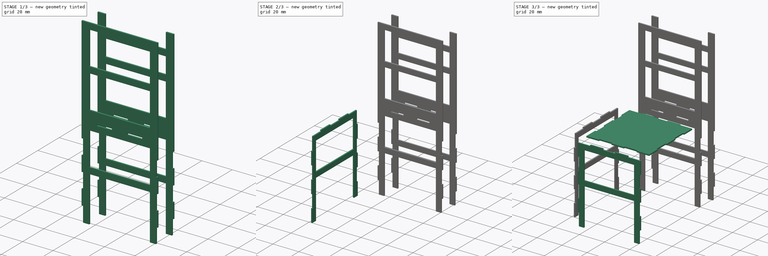
[diagram: build sequence overview — one tinted view per stage of 3, left to right]
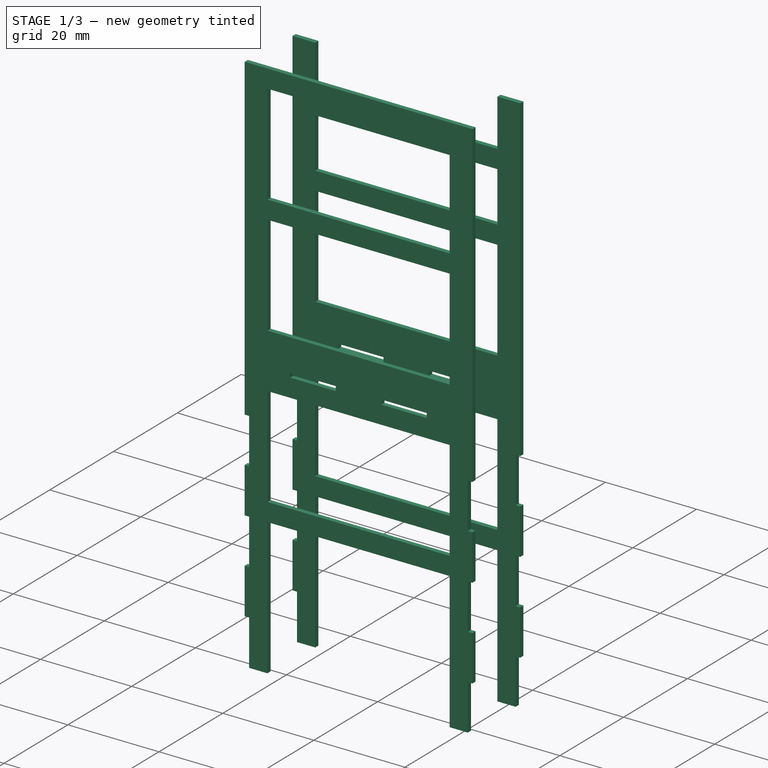
[diagram: stage 1 of 3 — iso view after this stage's code; geometry added in this stage tinted green]
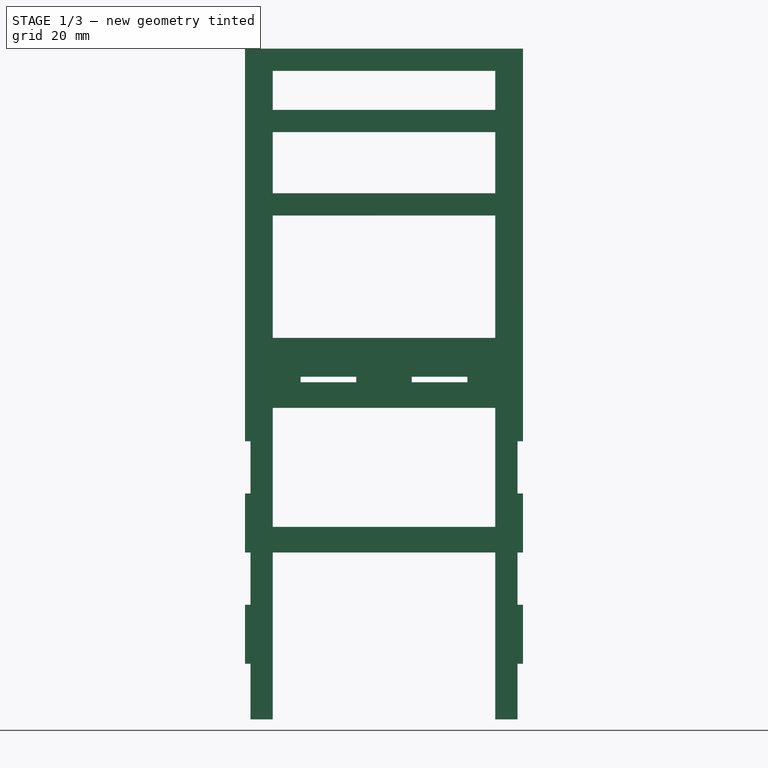
[diagram: stage 1 of 3 — front view after this stage's code; geometry added in this stage tinted green]
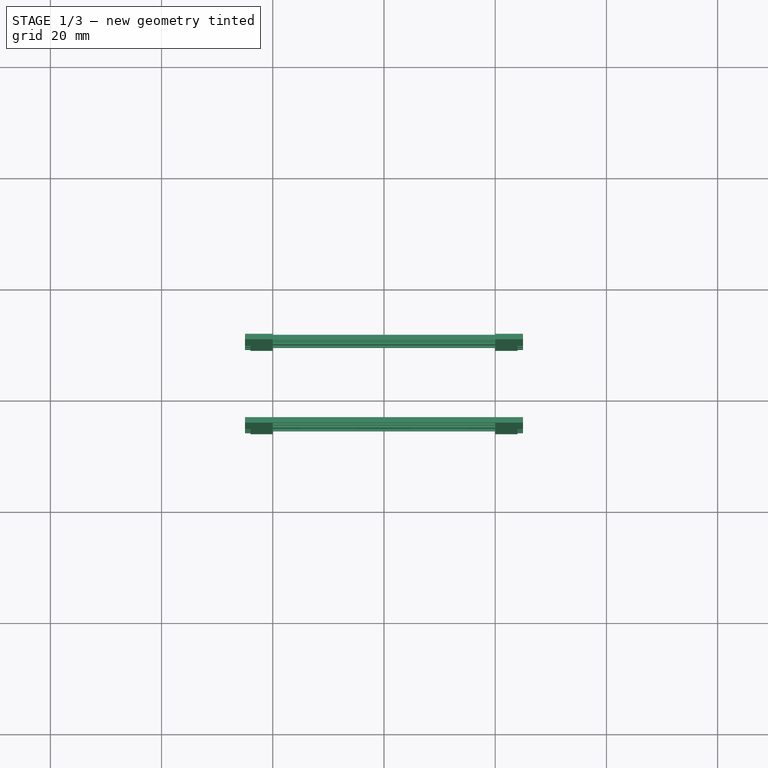
[diagram: stage 1 of 3 — top view after this stage's code; geometry added in this stage tinted green]
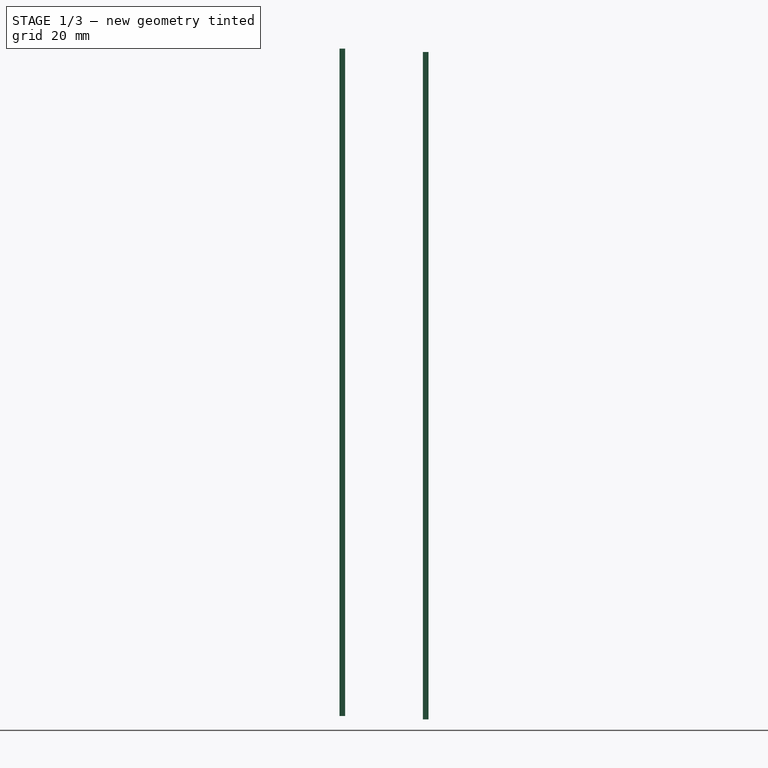
[diagram: stage 1 of 3 — right view after this stage's code; geometry added in this stage tinted green]
FCSTD DOCUMENT  (FreeCAD 0.16R6692 (Git))
Label: chairs_01
License: All rights reserved
LicenseURL: http://en.wikipedia.org/wiki/All_rights_reserved
objects: Sketcher::SketchObject×5, PartDesign::Pad×5, Part::FeaturePython×1
note: 16 computed .brp shape members not serialized (recipe doc carries the construction recipe); baked Part::Feature solids carry a one-line shape summary decoded from their .brp

FEATURE [Sketcher::SketchObject] Sketch003
  Placement = pos=(0,35,0) rot=(1,0,0;1.5708rad)
  sketch-geometry (50):
    g0: LineSegment StartX=-25 StartY=0 StartZ=0 EndX=-25 EndY=60 EndZ=0
    g1: LineSegment StartX=-25 StartY=60 StartZ=0 EndX=25 EndY=60 EndZ=0
    g2: LineSegment StartX=25 StartY=60 StartZ=0 EndX=25 EndY=0 EndZ=0
    g3: LineSegment StartX=25 StartY=0 StartZ=0 EndX=25 EndY=-10 EndZ=0
    g4: LineSegment StartX=25 StartY=-10 StartZ=0 EndX=24 EndY=-10 EndZ=0
    g5: LineSegment StartX=24 StartY=-10 StartZ=0 EndX=24 EndY=-20 EndZ=0
    g6: LineSegment StartX=24 StartY=-20 StartZ=0 EndX=25 EndY=-20 EndZ=0
    g7: LineSegment StartX=25 StartY=-20 StartZ=0 EndX=25 EndY=-30 EndZ=0
    g8: LineSegment StartX=25 StartY=-30 StartZ=0 EndX=24 EndY=-30 EndZ=0
    g9: LineSegment StartX=24 StartY=-30 StartZ=0 EndX=24 EndY=-40 EndZ=0
    g10: LineSegment StartX=24 StartY=-40 StartZ=0 EndX=25 EndY=-40 EndZ=0
    g11: LineSegment StartX=25 StartY=-40 StartZ=0 EndX=25 EndY=-50 EndZ=0
    g12: LineSegment StartX=25 StartY=-50 StartZ=0 EndX=24 EndY=-50 EndZ=0
    g13: LineSegment StartX=24 StartY=-50 StartZ=0 EndX=24 EndY=-60 EndZ=0
    g14: LineSegment StartX=24 StartY=-60 StartZ=0 EndX=20 EndY=-60 EndZ=0
    g15: LineSegment StartX=20 StartY=-60 StartZ=0 EndX=20 EndY=-30 EndZ=0
    g16: LineSegment StartX=20 StartY=-30 StartZ=0 EndX=-20 EndY=-30 EndZ=0
    g17: LineSegment StartX=-20 StartY=-30 StartZ=0 EndX=-20 EndY=-60 EndZ=0
    g18: LineSegment StartX=-20 StartY=-60 StartZ=0 EndX=-24 EndY=-60 EndZ=0
    g19: LineSegment StartX=-24 StartY=-60 StartZ=0 EndX=-24 EndY=-50 EndZ=0
    g20: LineSegment StartX=-24 StartY=-50 StartZ=0 EndX=-25 EndY=-50 EndZ=0
    g21: LineSegment StartX=-25 StartY=-50 StartZ=0 EndX=-25 EndY=-40 EndZ=0
    g22: LineSegment StartX=-25 StartY=-40 StartZ=0 EndX=-24 EndY=-40 EndZ=0
    g23: LineSegment StartX=-24 StartY=-40 StartZ=0 EndX=-24 EndY=-30 EndZ=0
    g24: LineSegment StartX=-24 StartY=-30 StartZ=0 EndX=-25 EndY=-30 EndZ=0
    g25: LineSegment StartX=-25 StartY=-30 StartZ=0 EndX=-25 EndY=-20 EndZ=0
    g26: LineSegment StartX=-25 StartY=-20 StartZ=0 EndX=-24 EndY=-20 EndZ=0
    g27: LineSegment StartX=-24 StartY=-20 StartZ=0 EndX=-24 EndY=-10 EndZ=0
    g28: LineSegment StartX=-24 StartY=-10 StartZ=0 EndX=-25 EndY=-10 EndZ=0
    g29: LineSegment StartX=-25 StartY=-10 StartZ=0 EndX=-25 EndY=0 EndZ=0
    g30: LineSegment StartX=-20 StartY=-4 StartZ=0 EndX=20 EndY=-4 EndZ=0
    g31: LineSegment StartX=20 StartY=-4 StartZ=0 EndX=20 EndY=-26 EndZ=0
    g32: LineSegment StartX=20 StartY=-26 StartZ=0 EndX=-20 EndY=-26 EndZ=0
    g33: LineSegment StartX=-20 StartY=-26 StartZ=0 EndX=-20 EndY=-4 EndZ=0
    g34: LineSegment StartX=-20 StartY=8 StartZ=0 EndX=20 EndY=8 EndZ=0
    g35: LineSegment StartX=20 StartY=8 StartZ=0 EndX=20 EndY=30 EndZ=0
    g36: LineSegment StartX=20 StartY=30 StartZ=0 EndX=-20 EndY=30 EndZ=0
    g37: LineSegment StartX=-20 StartY=30 StartZ=0 EndX=-20 EndY=8 EndZ=0
    g38: LineSegment StartX=-20 StartY=56 StartZ=0 EndX=20 EndY=56 EndZ=0
    g39: LineSegment StartX=20 StartY=56 StartZ=0 EndX=20 EndY=34 EndZ=0
    g40: LineSegment StartX=20 StartY=34 StartZ=0 EndX=-20 EndY=34 EndZ=0
    g41: LineSegment StartX=-20 StartY=34 StartZ=0 EndX=-20 EndY=56 EndZ=0
    g42: LineSegment StartX=-15 StartY=1 StartZ=0 EndX=-5 EndY=1 EndZ=0
    g43: LineSegment StartX=-5 StartY=1 StartZ=0 EndX=-5 EndY=0 EndZ=0
    g44: LineSegment StartX=-5 StartY=0 StartZ=0 EndX=-15 EndY=0 EndZ=0
    g45: LineSegment StartX=-15 StartY=0 StartZ=0 EndX=-15 EndY=1 EndZ=0
    g46: LineSegment StartX=5 StartY=1 StartZ=0 EndX=15 EndY=1 EndZ=0
    g47: LineSegment StartX=15 StartY=1 StartZ=0 EndX=15 EndY=0 EndZ=0
    g48: LineSegment StartX=15 StartY=0 StartZ=0 EndX=5 EndY=0 EndZ=0
    g49: LineSegment StartX=5 StartY=0 StartZ=0 EndX=5 EndY=1 EndZ=0
  constraints (154):
    c: Coincident(g0,g1)
    c: Horizontal(g1)
    c: Coincident(g1,g2)
    c: Vertical(g2)
    c: Coincident(g3,g4)
    c: Coincident(g4,g5)
    c: Vertical(g5)
    c: Coincident(g5,g6)
    c: Coincident(g6,g7)
    c: Vertical(g7)
    c: Coincident(g7,g8)
    c: Coincident(g8,g9)
    c: Coincident(g9,g10)
    c: Coincident(g10,g11)
    c: Vertical(g11)
    c: Coincident(g11,g12)
    c: Coincident(g12,g13)
    c: Vertical(g13)
    c: Coincident(g13,g14)
    c: Coincident(g14,g15)
    c: Vertical(g15)
    c: Coincident(g15,g16)
    c: Horizontal(g16)
    c: Coincident(g16,g17)
    c: Coincident(g17,g18)
    c: Coincident(g18,g19)
    c: Vertical(g19)
    c: Coincident(g19,g20)
    c: Coincident(g20,g21)
    c: Vertical(g21)
    c: Coincident(g21,g22)
    c: Coincident(g22,g23)
    c: Coincident(g23,g24)
    c: Horizontal(g24)
    c: Coincident(g24,g25)
    c: Vertical(g25)
    c: Coincident(g25,g26)
    c: Coincident(g26,g27)
    c: Coincident(g27,g28)
    c: Coincident(g28,g29)
    c: Vertical(g29)
    c: Vertical(g27)
    c: Vertical(g23)
    c: Vertical(g17)
    c: Vertical(g9)
    c: Vertical(g3)
    c: Horizontal(g28)
    c: Horizontal(g26)
    c: Horizontal(g22)
    c: Horizontal(g20)
    c: Horizontal(g18)
    c: Horizontal(g14)
    c: Horizontal(g12)
    c: Horizontal(g10)
    c: Horizontal(g8)
    c: Horizontal(g6)
    c: Horizontal(g4)
    c: Vertical(g0)
    c: Equal(g29,g27)
    c: Equal(g27,g25)
    c: Equal(g25,g23)
    c: Equal(g23,g21)
    c: Equal(g21,g19)
    c: Equal(g19,g13)
    c: Equal(g13,g11)
    c: Equal(g11,g9)
    c: Equal(g9,g7)
    c: Equal(g7,g5)
    c: Equal(g5,g3)
    c: Equal(g28,g26)
    c: Equal(g26,g24)
    c: Equal(g24,g22)
    c: Equal(g22,g20)
    c: Equal(g20,g12)
    c: Equal(g12,g10)
    c: Equal(g10,g8)
    c: Equal(g8,g6)
    c: Equal(g6,g4)
    c: DistanceY(g29) = 10
    c: DistanceX(g28) = -1
    c: Equal(g18,g14)
    c: DistanceX(g18) = -4
    c: Equal(g17,g15)
    c: DistanceY(g17) = -30
    c: Symmetric(g29,g3,g-2)
    c: Coincident(g30,g31)
    c: Coincident(g31,g32)
    c: Coincident(g32,g33)
    c: Coincident(g33,g30)
    c: Horizontal(g30)
    c: Horizontal(g32)
    c: Vertical(g31)
    c: Vertical(g33)
    c: Equal(g32,g30)
    c: Equal(g30,g16)
    c: Symmetric(g30,g30,g-2)
    c: DistanceY(g32,g16) = -4
    c: DistanceY(g30,g0) = 4
    c: Coincident(g0,g29)
    c: Coincident(g2,g3)
    c: Equal(g0,g2)
    c: DistanceY(g0) = 60
    c: Coincident(g34,g35)
    c: Coincident(g35,g36)
    c: Coincident(g36,g37)
    c: Coincident(g37,g34)
    c: Horizontal(g34)
    c: Vertical(g35)
    c: Vertical(g37)
    c: Coincident(g38,g39)
    c: Coincident(g39,g40)
    c: Coincident(g40,g41)
    c: Coincident(g41,g38)
    c: Horizontal(g38)
    c: Horizontal(g40)
    c: Vertical(g39)
    c: Vertical(g41)
    c: Equal(g38,g40)
    c: Equal(g40,g36)
    c: Equal(g36,g34)
    c: Equal(g34,g30)
    c: Equal(g41,g37)
    c: Equal(g37,g39)
    c: Equal(g39,g35)
    c: Symmetric(g40,g39,g-2)
    c: Symmetric(g36,g35,g-2)
    c: DistanceY(g40,g36) = -4
    c: DistanceY(g38,g0) = 4
    c: DistanceY(g37) = -22
    c: DistanceX(g1) = 50
    c: Coincident(g42,g43)
    c: Coincident(g43,g44)
    c: Coincident(g44,g45)
    c: Coincident(g45,g42)
    c: Horizontal(g42)
    c: Horizontal(g44)
    c: Vertical(g43)
    c: Vertical(g45)
    c: Coincident(g46,g47)
    c: Coincident(g47,g48)
    c: Coincident(g48,g49)
    c: Coincident(g49,g46)
    c: Horizontal(g46)
    c: Horizontal(g48)
    c: Vertical(g47)
    c: Vertical(g49)
    c: Equal(g42,g46)
    c: Equal(g45,g49)
    c: Symmetric(g42,g46,g-2)
    c: DistanceX(g42) = 10
    c: DistanceY(g45) = 1
    c: DistanceX(g-1,g42) = -5
    c: DistanceY(g-1,g43) = 0
    c: DistanceY(g-1,g34) = 8
FEATURE [PartDesign::Pad] Pad003  label="back1"
  Length = 1
  Length2 = 100
  Placement = pos=(0,35,0) rot=(1,0,0;1.5708rad)
  Sketch = -> Sketch003
  Type = 0
FEATURE [Sketcher::SketchObject] Sketch004
  Placement = pos=(0,50,0) rot=(1,0,0;1.5708rad)
  sketch-geometry (54):
    g0: LineSegment StartX=-25 StartY=-0.607968 StartZ=0 EndX=-25 EndY=59.392 EndZ=0
    g1: LineSegment StartX=25 StartY=59.392 StartZ=0 EndX=25 EndY=-0.607968 EndZ=0
    g2: LineSegment StartX=25 StartY=-0.607968 StartZ=0 EndX=25 EndY=-10.608 EndZ=0
    g3: LineSegment StartX=25 StartY=-10.608 StartZ=0 EndX=24 EndY=-10.608 EndZ=0
    g4: LineSegment StartX=24 StartY=-10.608 StartZ=0 EndX=24 EndY=-20.608 EndZ=0
    g5: LineSegment StartX=24 StartY=-20.608 StartZ=0 EndX=25 EndY=-20.608 EndZ=0
    g6: LineSegment StartX=25 StartY=-20.608 StartZ=0 EndX=25 EndY=-30.608 EndZ=0
    g7: LineSegment StartX=25 StartY=-30.608 StartZ=0 EndX=24 EndY=-30.608 EndZ=0
    g8: LineSegment StartX=24 StartY=-30.608 StartZ=0 EndX=24 EndY=-40.608 EndZ=0
    g9: LineSegment StartX=24 StartY=-40.608 StartZ=0 EndX=25 EndY=-40.608 EndZ=0
    g10: LineSegment StartX=25 StartY=-40.608 StartZ=0 EndX=25 EndY=-50.608 EndZ=0
    g11: LineSegment StartX=25 StartY=-50.608 StartZ=0 EndX=24 EndY=-50.608 EndZ=0
    g12: LineSegment StartX=24 StartY=-50.608 StartZ=0 EndX=24 EndY=-60.608 EndZ=0
    g13: LineSegment StartX=24 StartY=-60.608 StartZ=0 EndX=20 EndY=-60.608 EndZ=0
    g14: LineSegment StartX=20 StartY=-60.608 StartZ=0 EndX=20 EndY=-30.608 EndZ=0
    g15: LineSegment StartX=20 StartY=-30.608 StartZ=0 EndX=-20 EndY=-30.608 EndZ=0
    g16: LineSegment StartX=-20 StartY=-30.608 StartZ=0 EndX=-20 EndY=-60.608 EndZ=0
    g17: LineSegment StartX=-20 StartY=-60.608 StartZ=0 EndX=-24 EndY=-60.608 EndZ=0
    g18: LineSegment StartX=-24 StartY=-60.608 StartZ=0 EndX=-24 EndY=-50.608 EndZ=0
    g19: LineSegment StartX=-24 StartY=-50.608 StartZ=0 EndX=-25 EndY=-50.608 EndZ=0
    g20: LineSegment StartX=-25 StartY=-50.608 StartZ=0 EndX=-25 EndY=-40.608 EndZ=0
    g21: LineSegment StartX=-25 StartY=-40.608 StartZ=0 EndX=-24 EndY=-40.608 EndZ=0
    g22: LineSegment StartX=-24 StartY=-40.608 StartZ=0 EndX=-24 EndY=-30.608 EndZ=0
    g23: LineSegment StartX=-24 StartY=-30.608 StartZ=0 EndX=-25 EndY=-30.608 EndZ=0
    g24: LineSegment StartX=-25 StartY=-30.608 StartZ=0 EndX=-25 EndY=-20.608 EndZ=0
    g25: LineSegment StartX=-25 StartY=-20.608 StartZ=0 EndX=-24 EndY=-20.608 EndZ=0
    g26: LineSegment StartX=-24 StartY=-20.608 StartZ=0 EndX=-24 EndY=-10.608 EndZ=0
    g27: LineSegment StartX=-24 StartY=-10.608 StartZ=0 EndX=-25 EndY=-10.608 EndZ=0
    g28: LineSegment StartX=-25 StartY=-10.608 StartZ=0 EndX=-25 EndY=-0.607968 EndZ=0
    g29: LineSegment StartX=-20 StartY=-4.60797 StartZ=0 EndX=20 EndY=-4.60797 EndZ=0
    g30: LineSegment StartX=20 StartY=-4.60797 StartZ=0 EndX=20 EndY=-26.608 EndZ=0
    g31: LineSegment StartX=20 StartY=-26.608 StartZ=0 EndX=-20 EndY=-26.608 EndZ=0
    g32: LineSegment StartX=-20 StartY=-26.608 StartZ=0 EndX=-20 EndY=-4.60797 EndZ=0
    g33: LineSegment StartX=-20 StartY=8 StartZ=0 EndX=20 EndY=8 EndZ=0
    g34: LineSegment StartX=20 StartY=8 StartZ=0 EndX=20 EndY=30 EndZ=0
    g35: LineSegment StartX=20 StartY=30 StartZ=0 EndX=-20 EndY=30 EndZ=0
    g36: LineSegment StartX=-20 StartY=30 StartZ=0 EndX=-20 EndY=8 EndZ=0
    g37: LineSegment StartX=-20 StartY=45 StartZ=0 EndX=20 EndY=45 EndZ=0
    g38: LineSegment StartX=20 StartY=45 StartZ=0 EndX=20 EndY=34 EndZ=0
    g39: LineSegment StartX=20 StartY=34 StartZ=0 EndX=-20 EndY=34 EndZ=0
    g40: LineSegment StartX=-20 StartY=34 StartZ=0 EndX=-20 EndY=45 EndZ=0
    g41: LineSegment StartX=-15 StartY=1 StartZ=0 EndX=-5 EndY=1 EndZ=0
    g42: LineSegment StartX=-5 StartY=1 StartZ=0 EndX=-5 EndY=0 EndZ=0
    g43: LineSegment StartX=-5 StartY=0 StartZ=0 EndX=-15 EndY=0 EndZ=0
    g44: LineSegment StartX=-15 StartY=0 StartZ=0 EndX=-15 EndY=1 EndZ=0
    g45: LineSegment StartX=5 StartY=1 StartZ=0 EndX=15 EndY=1 EndZ=0
    g46: LineSegment StartX=15 StartY=1 StartZ=0 EndX=15 EndY=0 EndZ=0
    g47: LineSegment StartX=15 StartY=0 StartZ=0 EndX=5 EndY=0 EndZ=0
    g48: LineSegment StartX=5 StartY=0 StartZ=0 EndX=5 EndY=1 EndZ=0
    g49: LineSegment StartX=-25 StartY=59.392 StartZ=0 EndX=-20 EndY=59.392 EndZ=0
    g50: LineSegment StartX=-20 StartY=59.392 StartZ=0 EndX=-20 EndY=49 EndZ=0
    g51: LineSegment StartX=-20 StartY=49 StartZ=0 EndX=20 EndY=49 EndZ=0
    g52: LineSegment StartX=20 StartY=49 StartZ=0 EndX=20 EndY=59.392 EndZ=0
    g53: LineSegment StartX=20 StartY=59.392 StartZ=0 EndX=25 EndY=59.392 EndZ=0
  constraints (165):
    c: Vertical(g1)
    c: Coincident(g2,g3)
    c: Coincident(g3,g4)
    c: Vertical(g4)
    c: Coincident(g4,g5)
    c: Coincident(g5,g6)
    c: Vertical(g6)
    c: Coincident(g6,g7)
    c: Coincident(g7,g8)
    c: Coincident(g8,g9)
    c: Coincident(g9,g10)
    c: Vertical(g10)
    c: Coincident(g10,g11)
    c: Coincident(g11,g12)
    c: Vertical(g12)
    c: Coincident(g12,g13)
    c: Coincident(g13,g14)
    c: Vertical(g14)
    c: Coincident(g14,g15)
    c: Horizontal(g15)
    c: Coincident(g15,g16)
    c: Coincident(g16,g17)
    c: Coincident(g17,g18)
    c: Vertical(g18)
    c: Coincident(g18,g19)
    c: Coincident(g19,g20)
    c: Vertical(g20)
    c: Coincident(g20,g21)
    c: Coincident(g21,g22)
    c: Coincident(g22,g23)
    c: Horizontal(g23)
    c: Coincident(g23,g24)
    c: Vertical(g24)
    c: Coincident(g24,g25)
    c: Coincident(g25,g26)
    c: Coincident(g26,g27)
    c: Coincident(g27,g28)
    c: Vertical(g28)
    c: Vertical(g26)
    c: Vertical(g22)
    c: Vertical(g16)
    c: Vertical(g8)
    c: Vertical(g2)
    c: Horizontal(g27)
    c: Horizontal(g25)
    c: Horizontal(g21)
    c: Horizontal(g19)
    c: Horizontal(g17)
    c: Horizontal(g13)
    c: Horizontal(g11)
    c: Horizontal(g9)
    c: Horizontal(g7)
    c: Horizontal(g5)
    c: Horizontal(g3)
    c: Vertical(g0)
    c: Equal(g28,g26)
    c: Equal(g26,g24)
    c: Equal(g24,g22)
    c: Equal(g22,g20)
    c: Equal(g20,g18)
    c: Equal(g18,g12)
    c: Equal(g12,g10)
    c: Equal(g10,g8)
    c: Equal(g8,g6)
    c: Equal(g6,g4)
    c: Equal(g4,g2)
    c: Equal(g27,g25)
    c: Equal(g25,g23)
    c: Equal(g23,g21)
    c: Equal(g21,g19)
    c: Equal(g19,g11)
    c: Equal(g11,g9)
    c: Equal(g9,g7)
    c: Equal(g7,g5)
    c: Equal(g5,g3)
    c: DistanceY(g28) = 10
    c: DistanceX(g27) = -1
    c: Equal(g17,g13)
    c: DistanceX(g17) = -4
    c: Equal(g16,g14)
    c: DistanceY(g16) = -30
    c: Symmetric(g28,g2,g-2)
    c: Coincident(g29,g30)
    c: Coincident(g30,g31)
    c: Coincident(g31,g32)
    c: Coincident(g32,g29)
    c: Horizontal(g29)
    c: Horizontal(g31)
    c: Vertical(g30)
    c: Vertical(g32)
    c: Equal(g31,g29)
    c: Equal(g29,g15)
    c: Symmetric(g29,g29,g-2)
    c: DistanceY(g31,g15) = -4
    c: DistanceY(g29,g0) = 4
    c: Coincident(g0,g28)
    c: Coincident(g1,g2)
    c: Equal(g0,g1)
    c: DistanceY(g0) = 60
    c: Coincident(g33,g34)
    c: Coincident(g34,g35)
    c: Coincident(g35,g36)
    c: Coincident(g36,g33)
    c: Horizontal(g33)
    c: Vertical(g34)
    c: Vertical(g36)
    c: Coincident(g37,g38)
    c: Coincident(g38,g39)
    c: Coincident(g39,g40)
    c: Coincident(g40,g37)
    c: Horizontal(g37)
    c: Horizontal(g39)
    c: Vertical(g38)
    c: Equal(g37,g39)
    c: Equal(g39,g35)
    c: Equal(g35,g33)
    c: Equal(g33,g29)
    c: Symmetric(g39,g38,g-2)
    c: Symmetric(g35,g34,g-2)
    c: DistanceY(g39,g35) = -4
    c: DistanceY(g36) = -22
    c: Coincident(g41,g42)
    c: Coincident(g42,g43)
    c: Coincident(g43,g44)
    c: Coincident(g44,g41)
    c: Horizontal(g41)
    c: Horizontal(g43)
    c: Vertical(g42)
    c: Vertical(g44)
    c: Coincident(g45,g46)
    c: Coincident(g46,g47)
    c: Coincident(g47,g48)
    c: Coincident(g48,g45)
    c: Horizontal(g45)
    c: Horizontal(g47)
    c: Vertical(g46)
    c: Vertical(g48)
    c: Equal(g41,g45)
    c: Equal(g44,g48)
    c: Symmetric(g41,g45,g-2)
    c: DistanceX(g41) = 10
    c: DistanceY(g44) = 1
    c: DistanceX(g-1,g41) = -5
    c: DistanceY(g-1,g42) = 0
    c: DistanceY(g-1,g33) = 8
    c: DistanceY(g40,g40) = 11
    c: Coincident(g49,g50)
    c: Vertical(g50)
    c: Coincident(g50,g51)
    c: Horizontal(g51)
    c: Coincident(g51,g52)
    c: Vertical(g52)
    c: Coincident(g52,g53)
    c: Coincident(g53,g1)
    c: Horizontal(g53)
    c: Coincident(g0,g49)
    c: Horizontal(g49)
    c: DistanceY(g32,g32) = 22
    c: DistanceX(g51,g51) = 40
    c: Equal(g49,g53)
    c: Equal(g50,g52)
    c: DistanceY(g37,g50) = 4
    c: DistanceX(g35,g35) = 40
    c: DistanceX(g35,g35) = 40
    c: DistanceX(g49,g49) = 5
FEATURE [PartDesign::Pad] Pad004  label="back2"
  Length = 1
  Length2 = 100
  Placement = pos=(0,50,0) rot=(1,0,0;1.5708rad)
  Sketch = -> Sketch004
  Type = 0
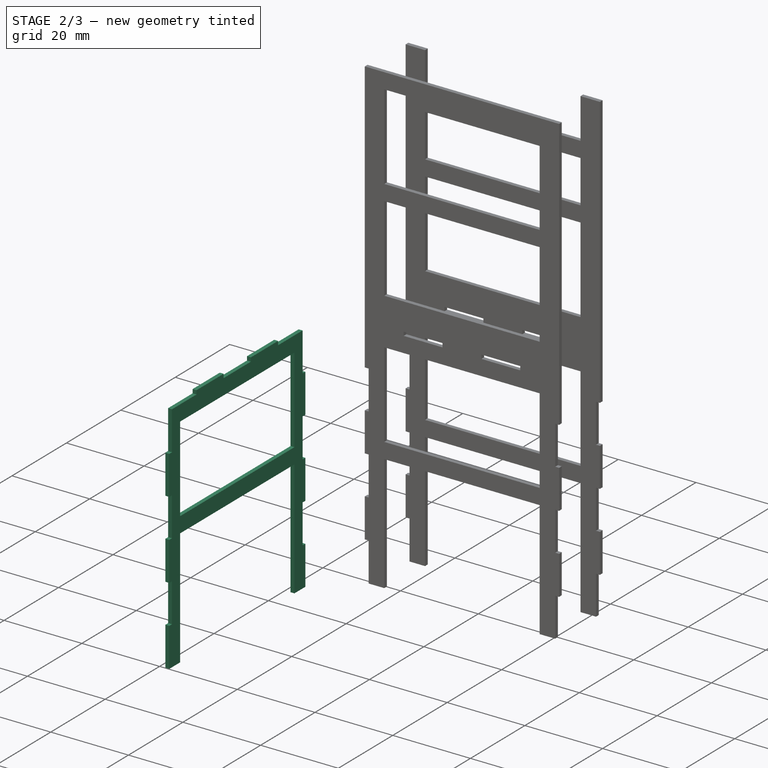
[diagram: stage 2 of 3 — iso view after this stage's code; geometry added in this stage tinted green]
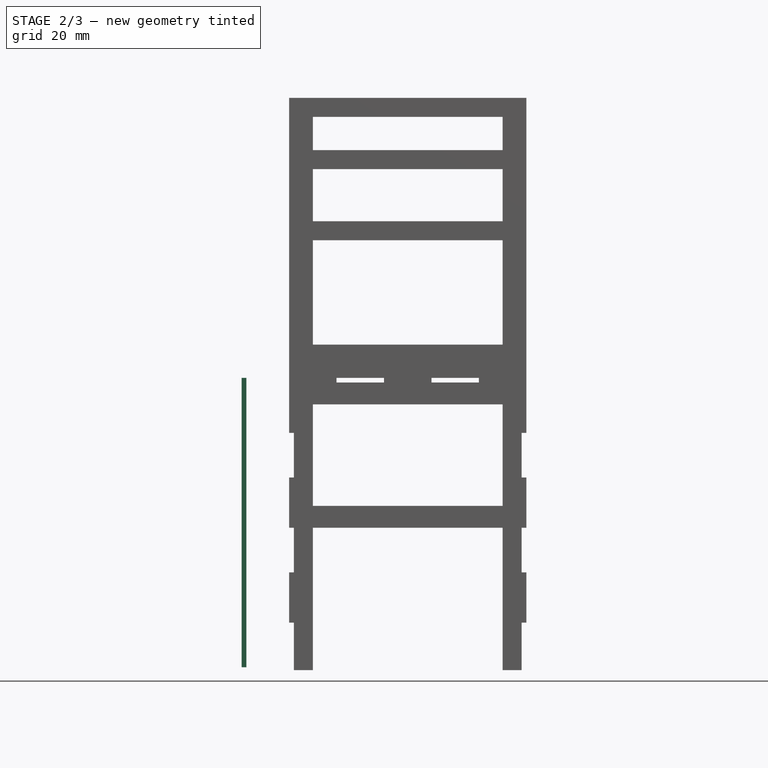
[diagram: stage 2 of 3 — front view after this stage's code; geometry added in this stage tinted green]
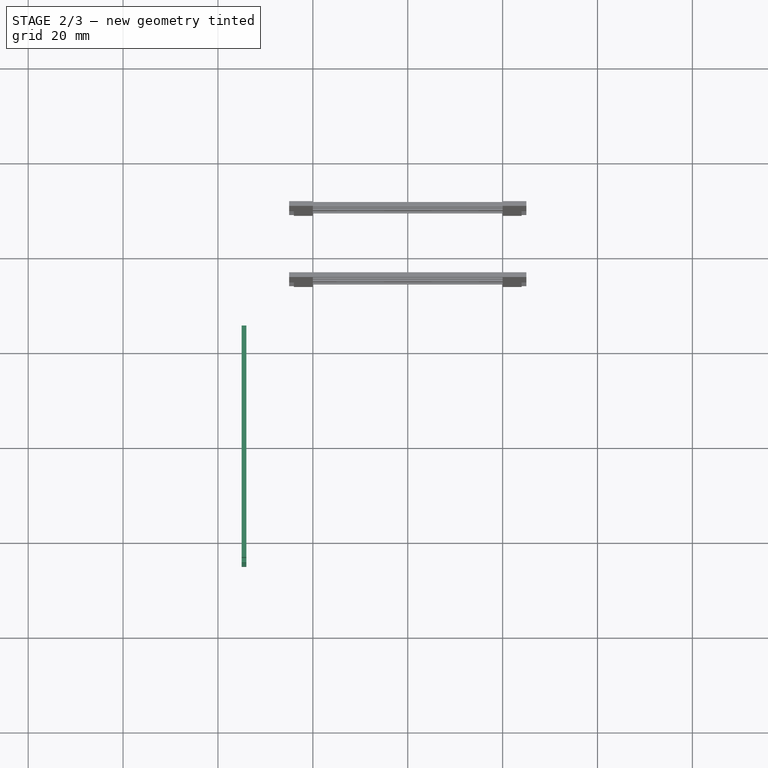
[diagram: stage 2 of 3 — top view after this stage's code; geometry added in this stage tinted green]
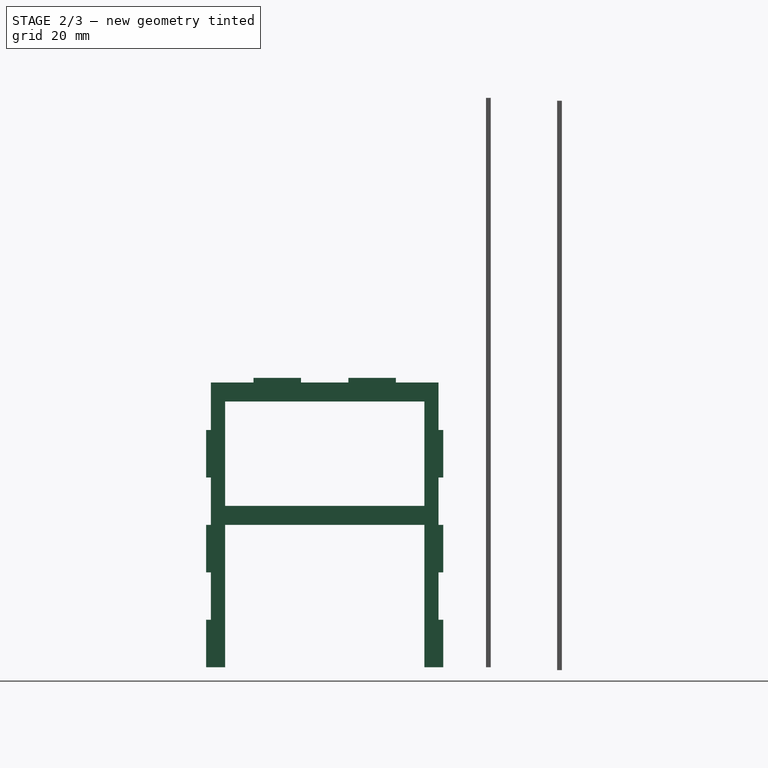
[diagram: stage 2 of 3 — right view after this stage's code; geometry added in this stage tinted green]
FEATURE [Sketcher::SketchObject] Sketch002
  Placement = pos=(34,0,0) rot=(0.57735,0.57735,0.57735;2.0944rad)
  sketch-geometry (40):
    g0: LineSegment StartX=-24 StartY=-10 StartZ=0 EndX=-24 EndY=0 EndZ=0
    g1: LineSegment StartX=-24 StartY=0 StartZ=0 EndX=-15 EndY=0 EndZ=0
    g2: LineSegment StartX=-15 StartY=0 StartZ=0 EndX=-15 EndY=1 EndZ=0
    g3: LineSegment StartX=-15 StartY=1 StartZ=0 EndX=-4.99998 EndY=1 EndZ=0
    g4: LineSegment StartX=-4.99998 StartY=1 StartZ=0 EndX=-4.99998 EndY=0 EndZ=0
    g5: LineSegment StartX=-4.99998 StartY=0 StartZ=0 EndX=5.00002 EndY=0 EndZ=0
    g6: LineSegment StartX=5.00002 StartY=0 StartZ=0 EndX=5.00002 EndY=1 EndZ=0
    g7: LineSegment StartX=5.00002 StartY=1 StartZ=0 EndX=15 EndY=1 EndZ=0
    g8: LineSegment StartX=15 StartY=1 StartZ=0 EndX=15 EndY=0 EndZ=0
    g9: LineSegment StartX=15 StartY=0 StartZ=0 EndX=24 EndY=0 EndZ=0
    g10: LineSegment StartX=24 StartY=0 StartZ=0 EndX=24 EndY=-10 EndZ=0
    g11: LineSegment StartX=24 StartY=-10 StartZ=0 EndX=25 EndY=-10 EndZ=0
    g12: LineSegment StartX=25 StartY=-10 StartZ=0 EndX=25 EndY=-20 EndZ=0
    g13: LineSegment StartX=25 StartY=-20 StartZ=0 EndX=24 EndY=-20 EndZ=0
    g14: LineSegment StartX=24 StartY=-20 StartZ=0 EndX=24 EndY=-30 EndZ=0
    g15: LineSegment StartX=24 StartY=-30 StartZ=0 EndX=25 EndY=-30 EndZ=0
    g16: LineSegment StartX=25 StartY=-30 StartZ=0 EndX=25 EndY=-40 EndZ=0
    g17: LineSegment StartX=25 StartY=-40 StartZ=0 EndX=24 EndY=-40 EndZ=0
    g18: LineSegment StartX=24 StartY=-40 StartZ=0 EndX=24 EndY=-50 EndZ=0
    g19: LineSegment StartX=24 StartY=-50 StartZ=0 EndX=25 EndY=-50 EndZ=0
    g20: LineSegment StartX=25 StartY=-50 StartZ=0 EndX=25 EndY=-60 EndZ=0
    g21: LineSegment StartX=25 StartY=-60 StartZ=0 EndX=21 EndY=-60 EndZ=0
    g22: LineSegment StartX=21 StartY=-60 StartZ=0 EndX=21 EndY=-30 EndZ=0
    g23: LineSegment StartX=21 StartY=-30 StartZ=0 EndX=-21 EndY=-30 EndZ=0
    g24: LineSegment StartX=-21 StartY=-30 StartZ=0 EndX=-21 EndY=-60 EndZ=0
    g25: LineSegment StartX=-21 StartY=-60 StartZ=0 EndX=-25 EndY=-60 EndZ=0
    g26: LineSegment StartX=-25 StartY=-60 StartZ=0 EndX=-25 EndY=-50 EndZ=0
    g27: LineSegment StartX=-25 StartY=-50 StartZ=0 EndX=-24 EndY=-50 EndZ=0
    g28: LineSegment StartX=-24 StartY=-50 StartZ=0 EndX=-24 EndY=-40 EndZ=0
    g29: LineSegment StartX=-24 StartY=-40 StartZ=0 EndX=-25 EndY=-40 EndZ=0
    g30: LineSegment StartX=-25 StartY=-40 StartZ=0 EndX=-25 EndY=-30 EndZ=0
    g31: LineSegment StartX=-25 StartY=-30 StartZ=0 EndX=-24 EndY=-30 EndZ=0
    g32: LineSegment StartX=-24 StartY=-30 StartZ=0 EndX=-24 EndY=-20 EndZ=0
    g33: LineSegment StartX=-24 StartY=-20 StartZ=0 EndX=-25 EndY=-20 EndZ=0
    g34: LineSegment StartX=-25 StartY=-20 StartZ=0 EndX=-25 EndY=-10 EndZ=0
    g35: LineSegment StartX=-25 StartY=-10 StartZ=0 EndX=-24 EndY=-10 EndZ=0
    g36: LineSegment StartX=-21 StartY=-4 StartZ=0 EndX=21 EndY=-4 EndZ=0
    g37: LineSegment StartX=21 StartY=-4 StartZ=0 EndX=21 EndY=-26 EndZ=0
    g38: LineSegment StartX=21 StartY=-26 StartZ=0 EndX=-21 EndY=-26 EndZ=0
    g39: LineSegment StartX=-21 StartY=-26 StartZ=0 EndX=-21 EndY=-4 EndZ=0
  constraints (120):
    c: Vertical(g0)
    c: Coincident(g0,g1)
    c: Horizontal(g1)
    c: Coincident(g1,g2)
    c: Vertical(g2)
    c: Coincident(g2,g3)
    c: Horizontal(g3)
    c: Coincident(g3,g4)
    c: Vertical(g4)
    c: Coincident(g4,g5)
    c: Horizontal(g5)
    c: Coincident(g5,g6)
    c: Vertical(g6)
    c: Coincident(g6,g7)
    c: Horizontal(g7)
    c: Coincident(g7,g8)
    c: Vertical(g8)
    c: Coincident(g8,g9)
    c: Horizontal(g9)
    c: Coincident(g9,g10)
    c: Vertical(g10)
    c: Coincident(g10,g11)
    c: Horizontal(g11)
    c: Coincident(g11,g12)
    c: Coincident(g12,g13)
    c: Horizontal(g13)
    c: Coincident(g13,g14)
    c: Vertical(g14)
    c: Coincident(g14,g15)
    c: Horizontal(g15)
    c: Coincident(g15,g16)
    c: Vertical(g16)
    c: Coincident(g16,g17)
    c: Horizontal(g17)
    c: Coincident(g17,g18)
    c: Vertical(g18)
    c: Coincident(g18,g19)
    c: Horizontal(g19)
    c: Coincident(g19,g20)
    c: Vertical(g20)
    c: Coincident(g20,g21)
    c: Horizontal(g21)
    c: Coincident(g21,g22)
    c: Vertical(g22)
    c: Coincident(g22,g23)
    c: Coincident(g23,g24)
    c: Vertical(g24)
    c: Coincident(g24,g25)
    c: Coincident(g25,g26)
    c: Vertical(g26)
    c: Coincident(g26,g27)
    c: Coincident(g27,g28)
    c: Vertical(g28)
    c: Coincident(g28,g29)
    c: Horizontal(g29)
    c: Coincident(g29,g30)
    c: Vertical(g30)
    c: Coincident(g30,g31)
    c: Horizontal(g31)
    c: Coincident(g31,g32)
    c: Vertical(g32)
    c: Coincident(g32,g33)
    c: Horizontal(g33)
    c: Coincident(g34,g35)
    c: Coincident(g35,g0)
    c: Horizontal(g35)
    c: Vertical(g12)
    c: Horizontal(g25)
    c: Horizontal(g27)
    c: Coincident(g34,g33)
    c: Equal(g3,g5)
    c: Equal(g5,g7)
    c: Equal(g0,g34)
    c: Equal(g34,g32)
    c: Equal(g32,g30)
    c: Equal(g30,g28)
    c: Equal(g28,g26)
    c: Equal(g26,g20)
    c: Equal(g20,g18)
    c: Equal(g18,g16)
    c: Equal(g16,g14)
    c: Equal(g14,g12)
    c: Equal(g12,g10)
    c: Equal(g2,g4)
    c: Equal(g4,g6)
    c: Equal(g6,g8)
    c: Equal(g35,g33)
    c: Equal(g33,g31)
    c: Equal(g31,g29)
    c: Equal(g29,g27)
    c: Equal(g27,g19)
    c: Equal(g19,g17)
    c: Equal(g17,g15)
    c: Equal(g15,g13)
    c: Equal(g13,g11)
    c: Equal(g25,g21)
    c: Equal(g24,g22)
    c: DistanceY(g2) = 1
    c: DistanceX(g35) = 1
    c: DistanceY(g0) = 10
    c: DistanceX(g25) = -4
    c: DistanceY(g24) = -30
    c: Coincident(g36,g37)
    c: Coincident(g37,g38)
    c: Coincident(g38,g39)
    c: Coincident(g39,g36)
    c: Horizontal(g36)
    c: Horizontal(g38)
    c: Vertical(g37)
    c: Vertical(g39)
    c: Equal(g38,g36)
    c: Equal(g36,g23)
    c: Symmetric(g36,g36,g-2)
    c: Symmetric(g23,g22,g-2)
    c: DistanceY(g38,g23) = -4
    c: DistanceY(g1,g36) = -4
    c: DistanceY(g-1,g4) = 0
    c: DistanceX(g3) = 10
    c: Equal(g9,g1)
    c: DistanceX(g1) = 9
FEATURE [PartDesign::Pad] Pad002  label="right"
  Length = 1
  Length2 = 100
  Placement = pos=(34,0,0) rot=(0.57735,0.57735,0.57735;2.0944rad)
  Sketch = -> Sketch002
  Type = 0
FEATURE [Part::FeaturePython] Clone  label="left"  # Draft clone (typed FeaturePython)
  Objects = -> [Pad002]
  Placement = pos=(-35,0,0) rot=(0.57735,0.57735,0.57735;2.0944rad)
  Scale = (1,1,1)
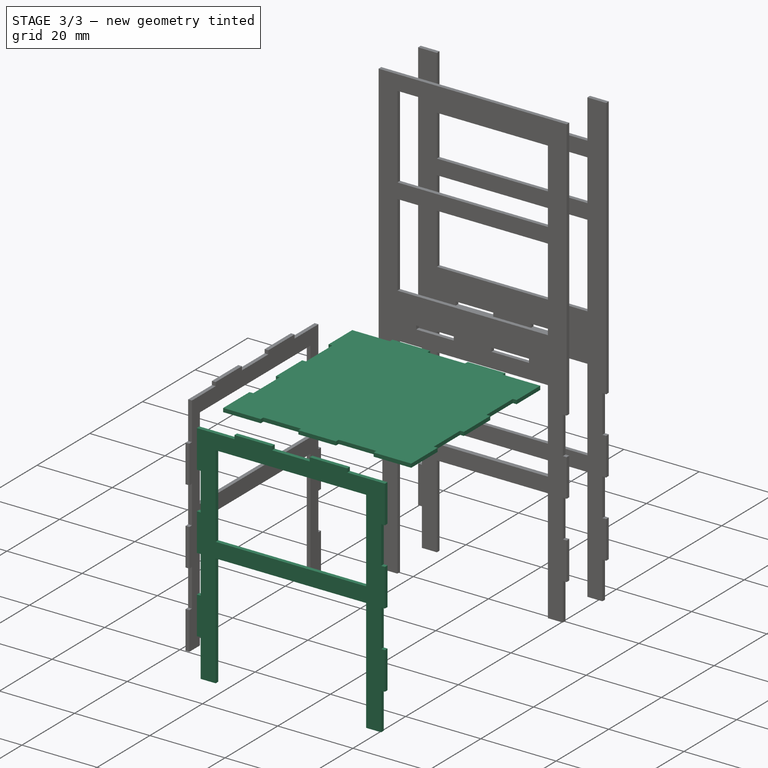
[diagram: stage 3 of 3 — iso view after this stage's code; geometry added in this stage tinted green]
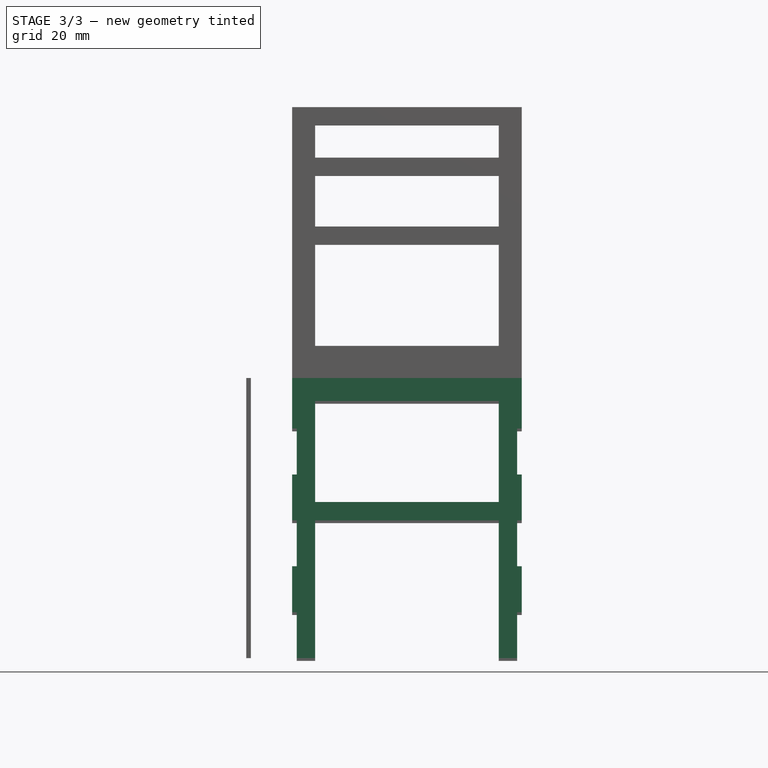
[diagram: stage 3 of 3 — front view after this stage's code; geometry added in this stage tinted green]
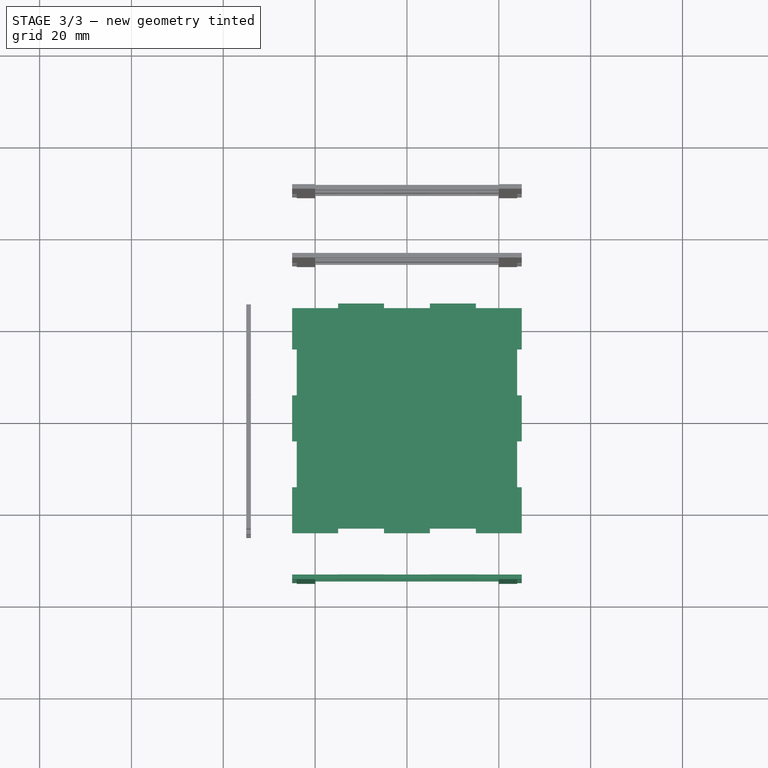
[diagram: stage 3 of 3 — top view after this stage's code; geometry added in this stage tinted green]
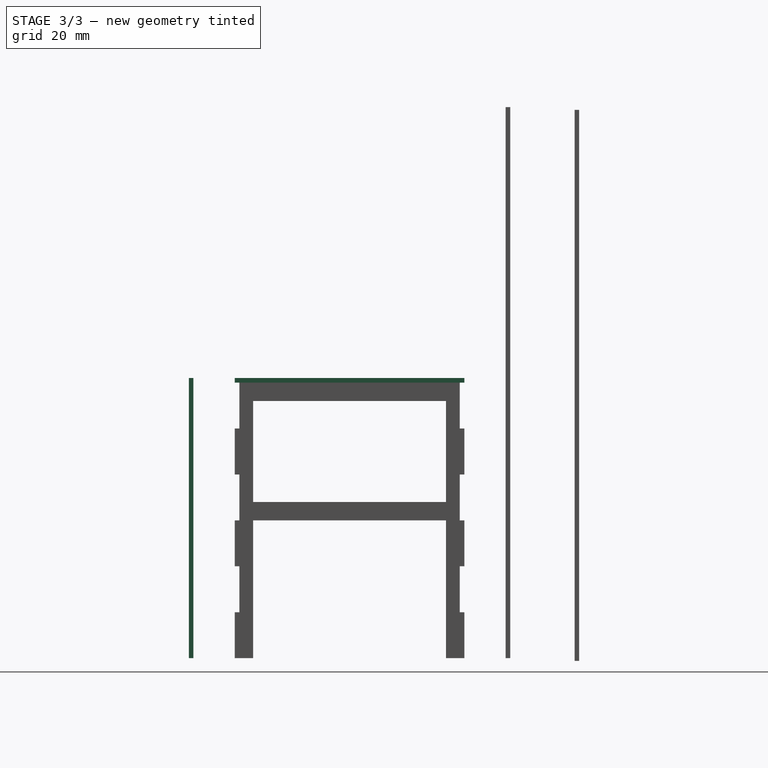
[diagram: stage 3 of 3 — right view after this stage's code; geometry added in this stage tinted green]
FEATURE [Sketcher::SketchObject] Sketch
  sketch-geometry (36):
    g0: LineSegment StartX=-25 StartY=24 StartZ=0 EndX=-15 EndY=24 EndZ=0
    g1: LineSegment StartX=-15 StartY=24 StartZ=0 EndX=-15 EndY=25 EndZ=0
    g2: LineSegment StartX=-15 StartY=25 StartZ=0 EndX=-5 EndY=25 EndZ=0
    g3: LineSegment StartX=-5 StartY=25 StartZ=0 EndX=-5 EndY=24 EndZ=0
    g4: LineSegment StartX=-5 StartY=24 StartZ=0 EndX=5 EndY=24 EndZ=0
    g5: LineSegment StartX=5 StartY=24 StartZ=0 EndX=5 EndY=25 EndZ=0
    g6: LineSegment StartX=5 StartY=25 StartZ=0 EndX=15 EndY=25 EndZ=0
    g7: LineSegment StartX=15 StartY=25 StartZ=0 EndX=15 EndY=24 EndZ=0
    g8: LineSegment StartX=15 StartY=24 StartZ=0 EndX=25 EndY=24 EndZ=0
    g9: LineSegment StartX=25 StartY=24 StartZ=0 EndX=25 EndY=15 EndZ=0
    g10: LineSegment StartX=25 StartY=15 StartZ=0 EndX=24 EndY=15 EndZ=0
    g11: LineSegment StartX=24 StartY=15 StartZ=0 EndX=24 EndY=5 EndZ=0
    g12: LineSegment StartX=24 StartY=5 StartZ=0 EndX=25 EndY=5 EndZ=0
    g13: LineSegment StartX=25 StartY=5 StartZ=0 EndX=25 EndY=-5 EndZ=0
    g14: LineSegment StartX=25 StartY=-5 StartZ=0 EndX=24 EndY=-5 EndZ=0
    g15: LineSegment StartX=24 StartY=-5 StartZ=0 EndX=24 EndY=-15 EndZ=0
    g16: LineSegment StartX=24 StartY=-15 StartZ=0 EndX=25 EndY=-15 EndZ=0
    g17: LineSegment StartX=25 StartY=-15 StartZ=0 EndX=25 EndY=-25 EndZ=0
    g18: LineSegment StartX=25 StartY=-25 StartZ=0 EndX=15 EndY=-25 EndZ=0
    g19: LineSegment StartX=15 StartY=-25 StartZ=0 EndX=15 EndY=-24 EndZ=0
    g20: LineSegment StartX=15 StartY=-24 StartZ=0 EndX=5 EndY=-24 EndZ=0
    g21: LineSegment StartX=5 StartY=-24 StartZ=0 EndX=5 EndY=-25 EndZ=0
    g22: LineSegment StartX=5 StartY=-25 StartZ=0 EndX=-5 EndY=-25 EndZ=0
    g23: LineSegment StartX=-5 StartY=-25 StartZ=0 EndX=-5 EndY=-24 EndZ=0
    g24: LineSegment StartX=-5 StartY=-24 StartZ=0 EndX=-15 EndY=-24 EndZ=0
    g25: LineSegment StartX=-15 StartY=-24 StartZ=0 EndX=-15 EndY=-25 EndZ=0
    g26: LineSegment StartX=-15 StartY=-25 StartZ=0 EndX=-25 EndY=-25 EndZ=0
    g27: LineSegment StartX=-25 StartY=-25 StartZ=0 EndX=-25 EndY=-15 EndZ=0
    g28: LineSegment StartX=-25 StartY=-15 StartZ=0 EndX=-24 EndY=-15 EndZ=0
    g29: LineSegment StartX=-24 StartY=-15 StartZ=0 EndX=-24 EndY=-5 EndZ=0
    g30: LineSegment StartX=-24 StartY=-5 StartZ=0 EndX=-25 EndY=-5 EndZ=0
    g31: LineSegment StartX=-25 StartY=-5 StartZ=0 EndX=-25 EndY=5 EndZ=0
    g32: LineSegment StartX=-24 StartY=5 StartZ=0 EndX=-24 EndY=15 EndZ=0
    g33: LineSegment StartX=-24 StartY=15 StartZ=0 EndX=-25 EndY=15 EndZ=0
    g34: LineSegment StartX=-25 StartY=15 StartZ=0 EndX=-25 EndY=24 EndZ=0
    g35: LineSegment StartX=-24 StartY=5 StartZ=0 EndX=-25 EndY=5 EndZ=0
  constraints (108):
    c: Coincident(g0,g1)
    c: Coincident(g1,g2)
    c: Horizontal(g2)
    c: Coincident(g2,g3)
    c: Vertical(g3)
    c: Coincident(g3,g4)
    c: Horizontal(g4)
    c: Coincident(g4,g5)
    c: Coincident(g5,g6)
    c: Horizontal(g6)
    c: Coincident(g6,g7)
    c: Coincident(g7,g8)
    c: Horizontal(g8)
    c: Coincident(g8,g9)
    c: Vertical(g9)
    c: Coincident(g9,g10)
    c: Coincident(g10,g11)
    c: Vertical(g11)
    c: Coincident(g11,g12)
    c: Coincident(g12,g13)
    c: Vertical(g13)
    c: Coincident(g13,g14)
    c: Horizontal(g14)
    c: Coincident(g14,g15)
    c: Coincident(g15,g16)
    c: Horizontal(g16)
    c: Coincident(g16,g17)
    c: Vertical(g17)
    c: Coincident(g17,g18)
    c: Horizontal(g18)
    c: Coincident(g18,g19)
    c: Vertical(g19)
    c: Coincident(g19,g20)
    c: Coincident(g20,g21)
    c: Coincident(g21,g22)
    c: Horizontal(g22)
    c: Coincident(g22,g23)
    c: Vertical(g23)
    c: Coincident(g23,g24)
    c: Horizontal(g24)
    c: Coincident(g24,g25)
    c: Coincident(g25,g26)
    c: Coincident(g26,g27)
    c: Vertical(g27)
    c: Coincident(g27,g28)
    c: Coincident(g28,g29)
    c: Vertical(g29)
    c: Coincident(g29,g30)
    c: Coincident(g30,g31)
    c: Coincident(g32,g33)
    c: Coincident(g33,g34)
    c: Vertical(g34)
    c: Coincident(g0,g34)
    c: Vertical(g5)
    c: Vertical(g7)
    c: Horizontal(g10)
    c: Horizontal(g12)
    c: Vertical(g15)
    c: Horizontal(g20)
    c: Vertical(g21)
    c: Vertical(g25)
    c: Horizontal(g26)
    c: Horizontal(g28)
    c: Horizontal(g30)
    c: Vertical(g31)
    c: Vertical(g32)
    c: Horizontal(g33)
    c: Coincident(g35,g31)
    c: Coincident(g32,g35)
    c: Horizontal(g35)
    c: Equal(g18,g20)
    c: Equal(g20,g22)
    c: Equal(g22,g24)
    c: Equal(g24,g26)
    c: Equal(g32,g31)
    c: Equal(g31,g29)
    c: Equal(g29,g27)
    c: Equal(g27,g17)
    c: Equal(g17,g15)
    c: Equal(g15,g13)
    c: Equal(g13,g11)
    c: Equal(g33,g35)
    c: Equal(g35,g30)
    c: Equal(g30,g28)
    c: Equal(g28,g16)
    c: Equal(g16,g14)
    c: Equal(g14,g12)
    c: Equal(g12,g10)
    c: Equal(g25,g23)
    c: Equal(g23,g21)
    c: Equal(g21,g19)
    c: DistanceX(g0) = 10
    c: DistanceX(g33) = -1
    c: Symmetric(g0,g8,g-2)
    c: DistanceY(g32) = 10
    c: Equal(g34,g9)
    c: DistanceY(g34) = 9
    c: Vertical(g1)
    c: Equal(g0,g2)
    c: Equal(g2,g4)
    c: Equal(g4,g6)
    c: Equal(g6,g8)
    c: Equal(g1,g3)
    c: Equal(g3,g5)
    c: Equal(g5,g7)
    c: DistanceY(g1) = 1
    c: DistanceY(g-1,g22) = -25
    c: DistanceY(g23,g23) = 1
FEATURE [PartDesign::Pad] Pad  label="seat"
  Length = 1
  Length2 = 100
  Sketch = -> Sketch
  Type = 0
FEATURE [Sketcher::SketchObject] Sketch001
  Placement = pos=(0,-34,0) rot=(1,0,0;1.5708rad)
  sketch-geometry (40):
    g0: LineSegment StartX=-25 StartY=0 StartZ=0 EndX=-15 EndY=0 EndZ=0
    g1: LineSegment StartX=-15 StartY=0 StartZ=0 EndX=-15 EndY=1 EndZ=0
    g2: LineSegment StartX=-15 StartY=1 StartZ=0 EndX=-5 EndY=1 EndZ=0
    g3: LineSegment StartX=-5 StartY=1 StartZ=0 EndX=-5 EndY=0 EndZ=0
    g4: LineSegment StartX=-5 StartY=0 StartZ=0 EndX=5 EndY=0 EndZ=0
    g5: LineSegment StartX=5 StartY=0 StartZ=0 EndX=5 EndY=1 EndZ=0
    g6: LineSegment StartX=5 StartY=1 StartZ=0 EndX=15 EndY=1 EndZ=0
    g7: LineSegment StartX=15 StartY=1 StartZ=0 EndX=15 EndY=0 EndZ=0
    g8: LineSegment StartX=15 StartY=0 StartZ=0 EndX=25 EndY=0 EndZ=0
    g9: LineSegment StartX=25 StartY=0 StartZ=0 EndX=25 EndY=-10 EndZ=0
    g10: LineSegment StartX=25 StartY=-10 StartZ=0 EndX=24 EndY=-10 EndZ=0
    g11: LineSegment StartX=24 StartY=-10 StartZ=0 EndX=24 EndY=-20 EndZ=0
    g12: LineSegment StartX=24 StartY=-20 StartZ=0 EndX=25 EndY=-20 EndZ=0
    g13: LineSegment StartX=25 StartY=-20 StartZ=0 EndX=25 EndY=-30 EndZ=0
    g14: LineSegment StartX=25 StartY=-30 StartZ=0 EndX=24 EndY=-30 EndZ=0
    g15: LineSegment StartX=24 StartY=-30 StartZ=0 EndX=24 EndY=-40 EndZ=0
    g16: LineSegment StartX=24 StartY=-40 StartZ=0 EndX=25 EndY=-40 EndZ=0
    g17: LineSegment StartX=25 StartY=-40 StartZ=0 EndX=25 EndY=-50 EndZ=0
    g18: LineSegment StartX=25 StartY=-50 StartZ=0 EndX=24 EndY=-50 EndZ=0
    g19: LineSegment StartX=24 StartY=-50 StartZ=0 EndX=24 EndY=-60 EndZ=0
    g20: LineSegment StartX=24 StartY=-60 StartZ=0 EndX=20 EndY=-60 EndZ=0
    g21: LineSegment StartX=20 StartY=-60 StartZ=0 EndX=20 EndY=-30 EndZ=0
    g22: LineSegment StartX=20 StartY=-30 StartZ=0 EndX=-20 EndY=-30 EndZ=0
    g23: LineSegment StartX=-20 StartY=-30 StartZ=0 EndX=-20 EndY=-60 EndZ=0
    g24: LineSegment StartX=-20 StartY=-60 StartZ=0 EndX=-24 EndY=-60 EndZ=0
    g25: LineSegment StartX=-24 StartY=-60 StartZ=0 EndX=-24 EndY=-50 EndZ=0
    g26: LineSegment StartX=-24 StartY=-50 StartZ=0 EndX=-25 EndY=-50 EndZ=0
    g27: LineSegment StartX=-25 StartY=-50 StartZ=0 EndX=-25 EndY=-40 EndZ=0
    g28: LineSegment StartX=-25 StartY=-40 StartZ=0 EndX=-24 EndY=-40 EndZ=0
    g29: LineSegment StartX=-24 StartY=-40 StartZ=0 EndX=-24 EndY=-30 EndZ=0
    g30: LineSegment StartX=-24 StartY=-30 StartZ=0 EndX=-25 EndY=-30 EndZ=0
    g31: LineSegment StartX=-25 StartY=-30 StartZ=0 EndX=-25 EndY=-20 EndZ=0
    g32: LineSegment StartX=-25 StartY=-20 StartZ=0 EndX=-24 EndY=-20 EndZ=0
    g33: LineSegment StartX=-24 StartY=-20 StartZ=0 EndX=-24 EndY=-10 EndZ=0
    g34: LineSegment StartX=-24 StartY=-10 StartZ=0 EndX=-25 EndY=-10 EndZ=0
    g35: LineSegment StartX=-25 StartY=-10 StartZ=0 EndX=-25 EndY=0 EndZ=0
    g36: LineSegment StartX=-20 StartY=-4 StartZ=0 EndX=20 EndY=-4 EndZ=0
    g37: LineSegment StartX=20 StartY=-4 StartZ=0 EndX=20 EndY=-26 EndZ=0
    g38: LineSegment StartX=20 StartY=-26 StartZ=0 EndX=-20 EndY=-26 EndZ=0
    g39: LineSegment StartX=-20 StartY=-26 StartZ=0 EndX=-20 EndY=-4 EndZ=0
  constraints (122):
    c: Horizontal(g0)
    c: Coincident(g0,g1)
    c: Coincident(g1,g2)
    c: Horizontal(g2)
    c: Coincident(g2,g3)
    c: Vertical(g3)
    c: Coincident(g3,g4)
    c: Horizontal(g4)
    c: Coincident(g4,g5)
    c: Vertical(g5)
    c: Coincident(g5,g6)
    c: Horizontal(g6)
    c: Coincident(g6,g7)
    c: Coincident(g7,g8)
    c: Horizontal(g8)
    c: Coincident(g8,g9)
    c: Coincident(g9,g10)
    c: Coincident(g10,g11)
    c: Vertical(g11)
    c: Coincident(g11,g12)
    c: Coincident(g12,g13)
    c: Vertical(g13)
    c: Coincident(g13,g14)
    c: Coincident(g14,g15)
    c: Coincident(g15,g16)
    c: Coincident(g16,g17)
    c: Vertical(g17)
    c: Coincident(g17,g18)
    c: Coincident(g18,g19)
    c: Vertical(g19)
    c: Coincident(g19,g20)
    c: Coincident(g20,g21)
    c: Vertical(g21)
    c: Coincident(g21,g22)
    c: Horizontal(g22)
    c: Coincident(g22,g23)
    c: Coincident(g23,g24)
    c: Coincident(g24,g25)
    c: Vertical(g25)
    c: Coincident(g25,g26)
    c: Coincident(g26,g27)
    c: Vertical(g27)
    c: Coincident(g27,g28)
    c: Coincident(g28,g29)
    c: Coincident(g29,g30)
    c: Horizontal(g30)
    c: Coincident(g30,g31)
    c: Vertical(g31)
    c: Coincident(g31,g32)
    c: Coincident(g32,g33)
    c: Coincident(g33,g34)
    c: Coincident(g34,g35)
    c: Coincident(g35,g0)
    c: Vertical(g35)
    c: Vertical(g33)
    c: Vertical(g29)
    c: Vertical(g23)
    c: Vertical(g15)
    c: Vertical(g9)
    c: Horizontal(g34)
    c: Horizontal(g32)
    c: Horizontal(g28)
    c: Horizontal(g26)
    c: Horizontal(g24)
    c: Horizontal(g20)
    c: Horizontal(g18)
    c: Horizontal(g16)
    c: Horizontal(g14)
    c: Horizontal(g12)
    c: Horizontal(g10)
    c: Vertical(g7)
    c: Vertical(g1)
    c: Equal(g35,g33)
    c: Equal(g33,g31)
    c: Equal(g31,g29)
    c: Equal(g29,g27)
    c: Equal(g27,g25)
    c: Equal(g25,g19)
    c: Equal(g19,g17)
    c: Equal(g17,g15)
    c: Equal(g15,g13)
    c: Equal(g13,g11)
    c: Equal(g11,g9)
    c: Equal(g0,g2)
    c: Equal(g2,g4)
    c: Equal(g4,g6)
    c: Equal(g6,g8)
    c: Equal(g34,g32)
    c: Equal(g32,g30)
    c: Equal(g30,g28)
    c: Equal(g28,g26)
    c: Equal(g26,g18)
    c: Equal(g18,g16)
    c: Equal(g16,g14)
    c: Equal(g14,g12)
    c: Equal(g12,g10)
    c: Equal(g1,g3)
    c: Equal(g3,g5)
    c: Equal(g5,g7)
    c: DistanceX(g0) = 10
    c: DistanceY(g35) = 10
    c: DistanceX(g34) = -1
    c: DistanceY(g1) = 1
    c: Equal(g24,g20)
    c: DistanceX(g24) = -4
    c: Equal(g23,g21)
    c: DistanceY(g23) = -30
    c: DistanceY(g-1,g3) = 0
    c: Symmetric(g0,g8,g-2)
    c: Coincident(g36,g37)
    c: Coincident(g37,g38)
    c: Coincident(g38,g39)
    c: Coincident(g39,g36)
    c: Horizontal(g36)
    c: Horizontal(g38)
    c: Vertical(g37)
    c: Vertical(g39)
    c: Equal(g38,g36)
    c: Equal(g36,g22)
    c: Symmetric(g36,g36,g-2)
    c: DistanceY(g38,g22) = -4
    c: DistanceY(g36,g0) = 4
FEATURE [PartDesign::Pad] Pad001  label="front"
  Length = 1
  Length2 = 100
  Placement = pos=(0,-34,0) rot=(1,0,0;1.5708rad)
  Sketch = -> Sketch001
  Type = 0
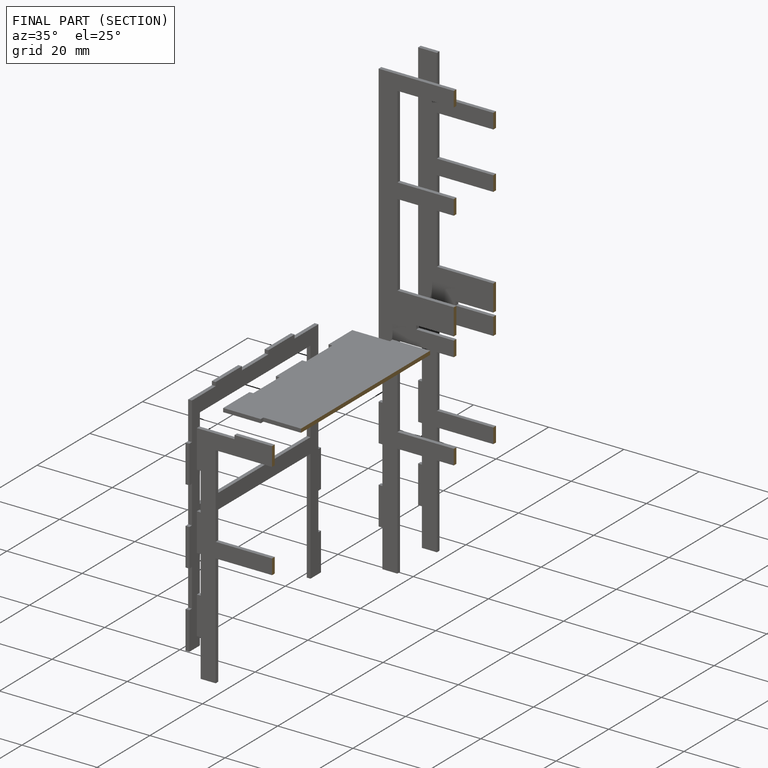
[diagram: finished part — half-section view (interior)]
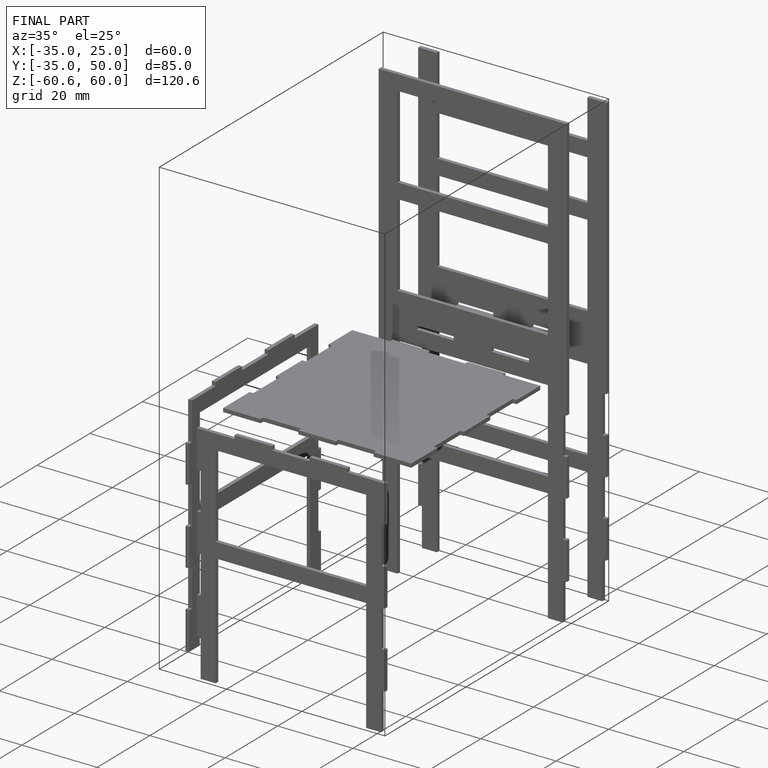
[diagram: finished part — iso view with bounding-box wireframe]
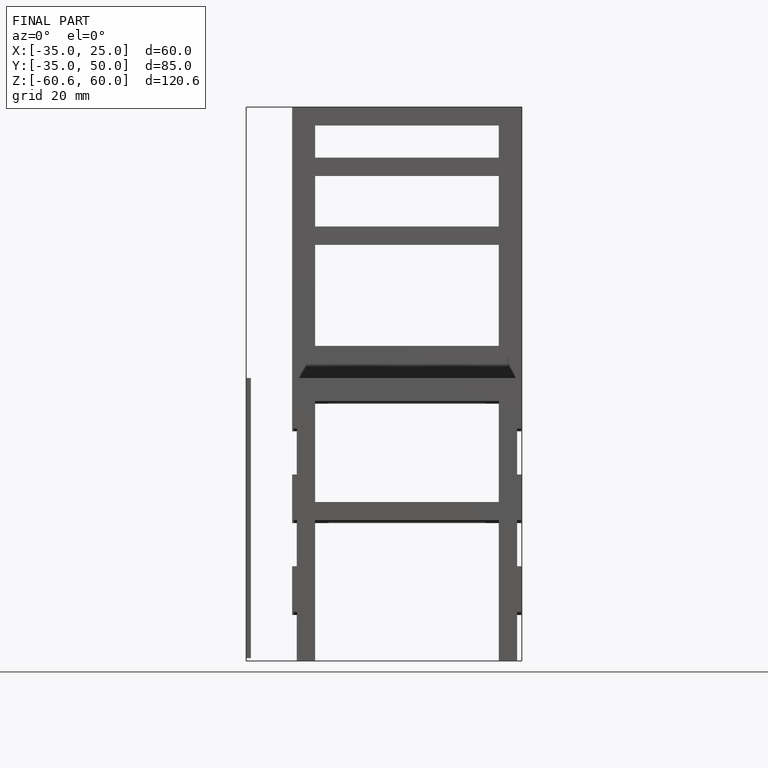
[diagram: finished part — front view with bounding-box wireframe]
